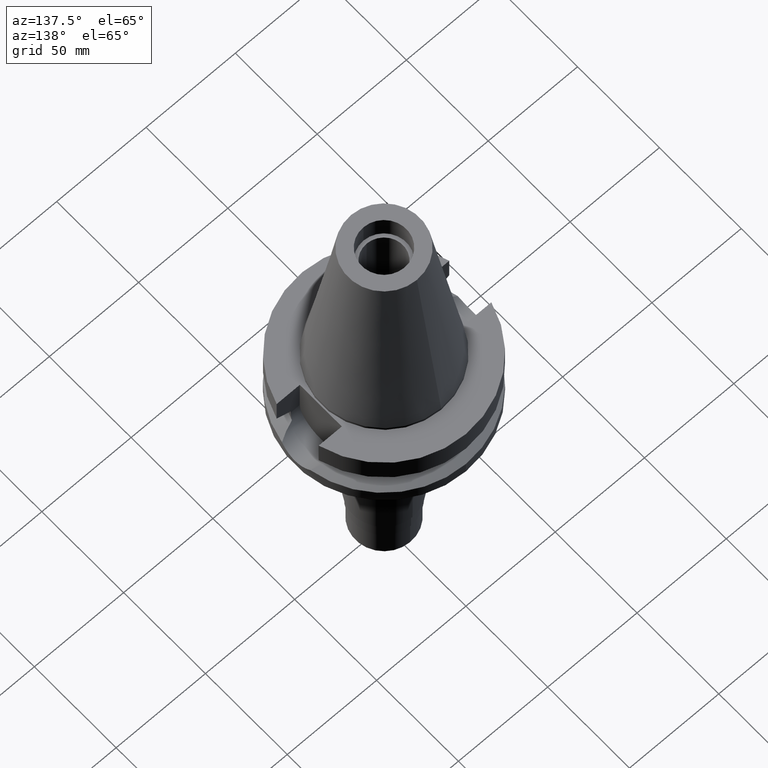
[diagram: clean part render]
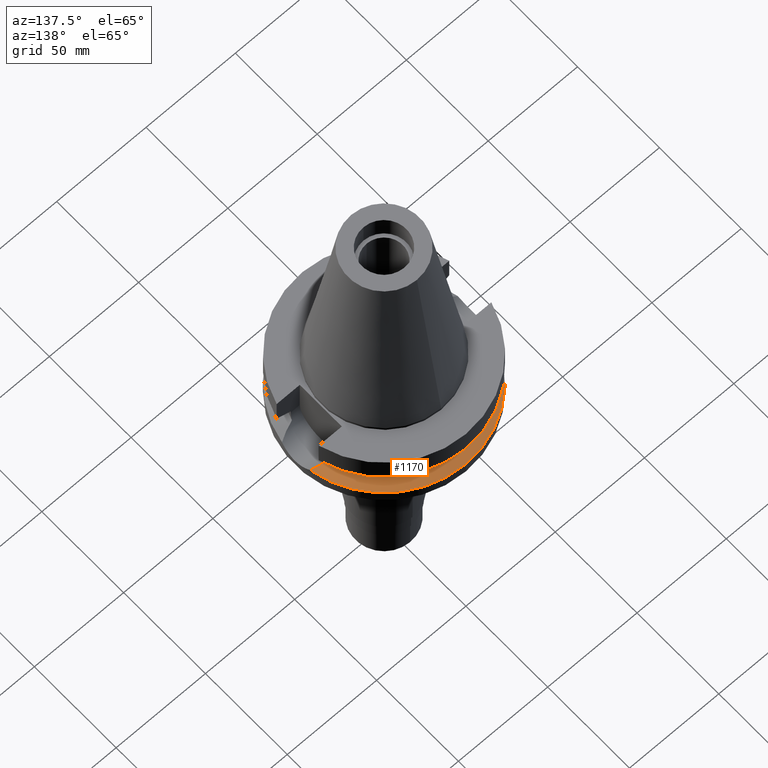
[diagram: same view with one face highlighted and labeled with its STEP entity id]
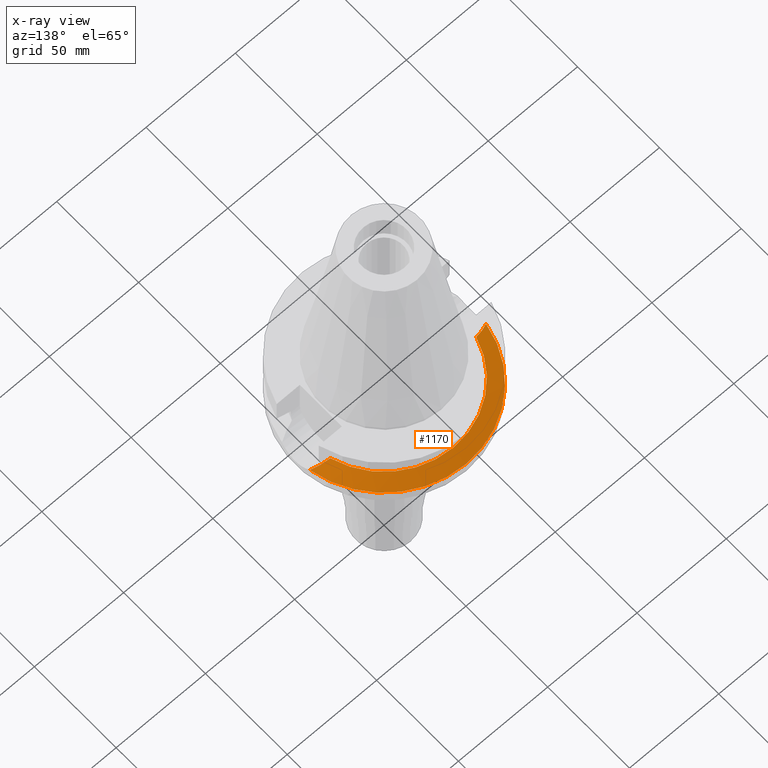
[diagram: x-ray of the same camera — body ghosted, the highlighted face saturated]
A machine part, auxiliary view. The second image highlights one B-rep face of the part: STEP entity #1170.
The next image is the same camera in x-ray: the body ghosted, the highlighted face saturated — about 0% of this face is hidden behind the body in this view.
In plain terms, the highlighted conical surface has half-angle 60 deg.
Its self-contained STEP definition (entity closure, byte-faithful):
#114=CARTESIAN_POINT('',(-4.926250064874E1,8.556052234130E0,-3.073730776427E1));
#129=CARTESIAN_POINT('',(-4.085052569294E1,1.172538061688E1,-2.640718074535E1));
#130=CARTESIAN_POINT('',(-4.199348510536E1,1.145995293716E1,-2.699917876135E1));
#131=CARTESIAN_POINT('',(-4.414319368901E1,1.085480588546E1,-2.810907412893E1));
#132=CARTESIAN_POINT('',(-4.694709705680E1,9.776435535546E0,-2.955071524029E1));
#133=CARTESIAN_POINT('',(-4.853755667859E1,8.972072893603E0,-3.036603622690E1));
#134=CARTESIAN_POINT('',(-4.926250064874E1,8.556052234130E0,-3.073730776427E1));
#136=CARTESIAN_POINT('',(0.E0,0.E0,-3.073730776427E1));
#137=DIRECTION('',(0.E0,0.E0,-1.E0));
#138=DIRECTION('',(-9.852500129747E-1,1.711210446826E-1,0.E0));
#139=AXIS2_PLACEMENT_3D('',#136,#137,#138);
#141=CARTESIAN_POINT('',(0.E0,0.E0,-3.073730776427E1));
#142=DIRECTION('',(0.E0,0.E0,-1.E0));
#143=DIRECTION('',(0.E0,1.E0,0.E0));
#144=AXIS2_PLACEMENT_3D('',#141,#142,#143);
#146=CARTESIAN_POINT('',(4.926250064874E1,8.556052234130E0,-3.073730776427E1));
#147=CARTESIAN_POINT('',(4.853475255429E1,8.973682085055E0,-3.036460012758E1));
#148=CARTESIAN_POINT('',(4.694017139903E1,9.780873756451E0,-2.954718897851E1));
#149=CARTESIAN_POINT('',(4.409106275071E1,1.087227705444E1,-2.808223255691E1));
#150=CARTESIAN_POINT('',(4.197048816760E1,1.146529348011E1,-2.698726745341E1));
#151=CARTESIAN_POINT('',(4.085052569294E1,1.172538061688E1,-2.640718074535E1));
#153=CARTESIAN_POINT('',(0.E0,0.E0,-2.640718074535E1));
#154=DIRECTION('',(0.E0,0.E0,1.E0));
#155=DIRECTION('',(9.611888398338E-1,2.758913086325E-1,0.E0));
#156=AXIS2_PLACEMENT_3D('',#153,#154,#155);
#158=CARTESIAN_POINT('',(0.E0,0.E0,-2.640718074535E1));
#159=DIRECTION('',(0.E0,0.E0,1.E0));
#160=DIRECTION('',(0.E0,1.E0,0.E0));
#161=AXIS2_PLACEMENT_3D('',#158,#159,#160);
#168=CARTESIAN_POINT('',(-4.085052569294E1,1.172538061688E1,-2.640718074535E1));
#893=VERTEX_POINT('',#168);
#894=CARTESIAN_POINT('',(0.E0,4.25E1,-2.640718074535E1));
#895=VERTEX_POINT('',#894);
#896=CARTESIAN_POINT('',(4.085052569294E1,1.172538061688E1,-2.640718074535E1));
#897=VERTEX_POINT('',#896);
#906=VERTEX_POINT('',#114);
#910=CARTESIAN_POINT('',(0.E0,5.E1,-3.073730776427E1));
#911=VERTEX_POINT('',#910);
#912=CARTESIAN_POINT('',(4.926250064874E1,8.556052234129E0,-3.073730776427E1));
#913=VERTEX_POINT('',#912);
#1155=CARTESIAN_POINT('',(0.E0,0.E0,-2.857224425481E1));
#1156=DIRECTION('',(0.E0,0.E0,-1.E0));
#1157=DIRECTION('',(0.E0,-1.E0,0.E0));
#1158=AXIS2_PLACEMENT_3D('',#1155,#1156,#1157);
#1159=CONICAL_SURFACE('',#1158,4.625E1,6.E1);
#1160=ORIENTED_EDGE('',*,*,#1109,.T.);
#1161=ORIENTED_EDGE('',*,*,#1143,.T.);
#1162=ORIENTED_EDGE('',*,*,#1025,.T.);
#1163=ORIENTED_EDGE('',*,*,#1064,.T.);
#1165=ORIENTED_EDGE('',*,*,#1164,.T.);
#1167=ORIENTED_EDGE('',*,*,#1166,.T.);
#1168=EDGE_LOOP('',(#1160,#1161,#1162,#1163,#1165,#1167));
#1169=FACE_OUTER_BOUND('',#1168,.F.);
#135=B_SPLINE_CURVE_WITH_KNOTS('',3,(#129,#130,#131,#132,#133,#134),
.UNSPECIFIED.,.F.,.F.,(4,1,1,4),(0.E0,3.333333333333E-1,6.666666666667E-1,1.E0),
.UNSPECIFIED.);
#140=CIRCLE('',#139,5.E1);
#145=CIRCLE('',#144,5.E1);
#152=B_SPLINE_CURVE_WITH_KNOTS('',3,(#146,#147,#148,#149,#150,#151),
.UNSPECIFIED.,.F.,.F.,(4,1,1,4),(0.E0,3.333333333333E-1,6.666666666667E-1,1.E0),
.UNSPECIFIED.);
#157=CIRCLE('',#156,4.25E1);
#162=CIRCLE('',#161,4.25E1);
#1025=EDGE_CURVE('',#911,#913,#145,.T.);
#1064=EDGE_CURVE('',#913,#897,#152,.T.);
#1109=EDGE_CURVE('',#893,#906,#135,.T.);
#1143=EDGE_CURVE('',#906,#911,#140,.T.);
#1164=EDGE_CURVE('',#897,#895,#157,.T.);
#1166=EDGE_CURVE('',#895,#893,#162,.T.);
#1170=ADVANCED_FACE('',(#1169),#1159,.T.);